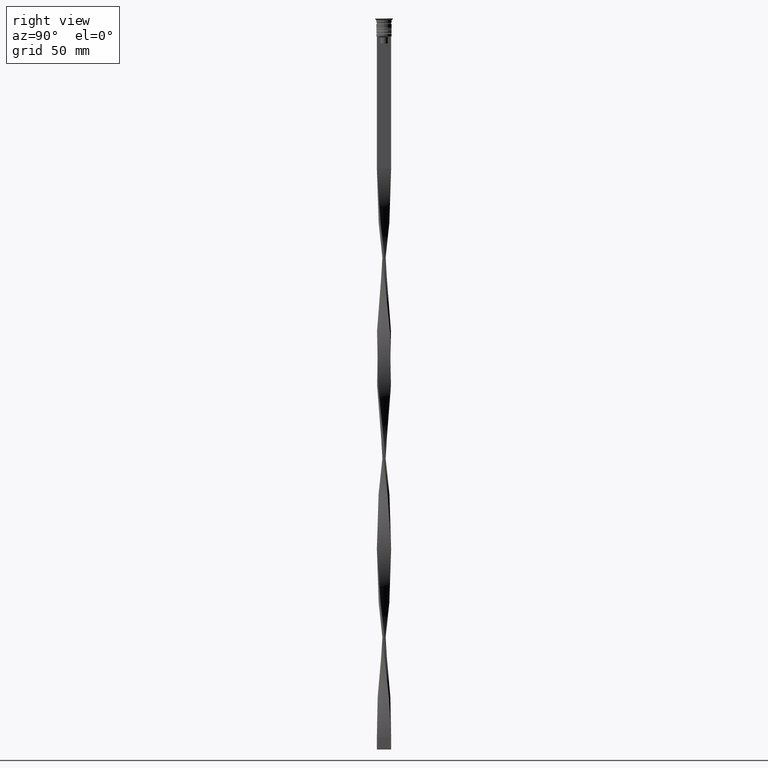
[diagram: clean part render]
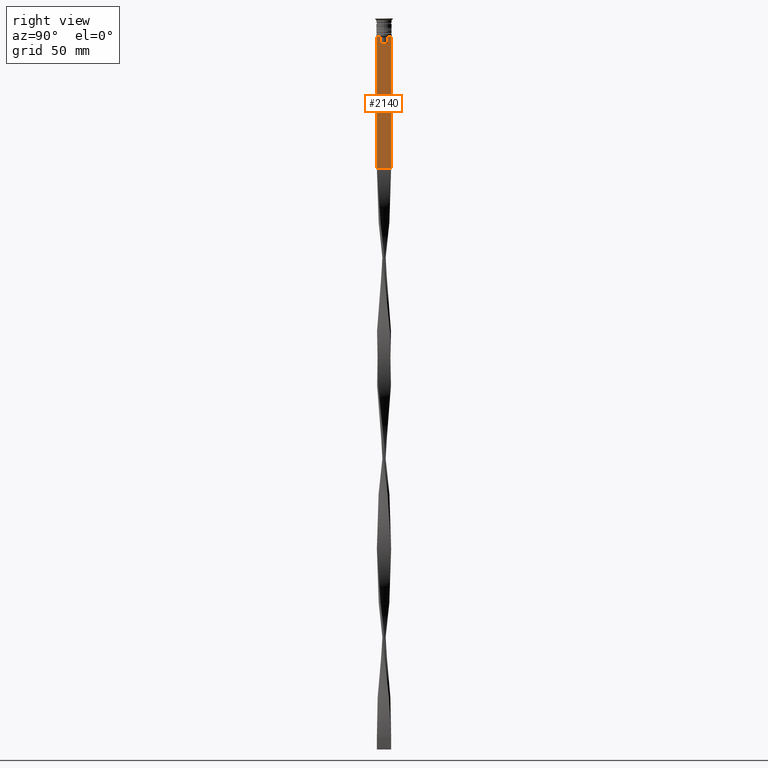
[diagram: same view with one face highlighted and labeled with its STEP entity id]
A machine part, right view. The second image highlights one B-rep face of the part: STEP entity #2140.
In plain terms, the highlighted planar face has unit normal (-1, 0, 0).
Its self-contained STEP definition (entity closure, byte-faithful):
#1 = EDGE_CURVE ( 'NONE', #3443, #3094, #826, .T. ) ;
#82 = DIRECTION ( 'NONE',  ( 0.000000000000000000, 1.000000000000000000, 0.000000000000000000 ) ) ;
#108 = CARTESIAN_POINT ( 'NONE',  ( 0.4999999999999998890, 3.000000000000000000, -1.417237469701779329 ) ) ;
#145 = EDGE_CURVE ( 'NONE', #1032, #1916, #1676, .T. ) ;
#248 = AXIS2_PLACEMENT_3D ( 'NONE', #797, #3171, #3395 ) ;
#262 = CARTESIAN_POINT ( 'NONE',  ( 0.4999999999999998890, 1.572418519351642452, -8.000000000000000000 ) ) ;
#354 = LINE ( 'NONE', #3752, #938 ) ;
#411 = VERTEX_POINT ( 'NONE', #3437 ) ;
#424 = LINE ( 'NONE', #2179, #2217 ) ;
#427 = LINE ( 'NONE', #1583, #1436 ) ;
#477 = VERTEX_POINT ( 'NONE', #581 ) ;
#516 = ORIENTED_EDGE ( 'NONE', *, *, #2050, .T. ) ;
#581 = CARTESIAN_POINT ( 'NONE',  ( 0.4999999999999998890, -3.000000000000000000, -7.500000000000000000 ) ) ;
#673 = EDGE_CURVE ( 'NONE', #3094, #806, #354, .T. ) ;
#714 = CARTESIAN_POINT ( 'NONE',  ( 0.4999999999999998890, -2.091052366632653481, -7.500000000000000000 ) ) ;
#732 = FACE_OUTER_BOUND ( 'NONE', #3494, .T. ) ;
#754 = EDGE_CURVE ( 'NONE', #2912, #3477, #1882, .T. ) ;
#766 = DIRECTION ( 'NONE',  ( 0.000000000000000000, 0.000000000000000000, -1.000000000000000000 ) ) ;
#797 = CARTESIAN_POINT ( 'NONE',  ( 0.4999999999999998890, -3.000000000000000000, -1.417237469701779329 ) ) ;
#804 = ORIENTED_EDGE ( 'NONE', *, *, #673, .T. ) ;
#806 = VERTEX_POINT ( 'NONE', #2063 ) ;
#826 = LINE ( 'NONE', #1938, #2101 ) ;
#884 = ORIENTED_EDGE ( 'NONE', *, *, #1935, .T. ) ;
#938 = VECTOR ( 'NONE', #2187, 1000.000000000000000 ) ;
#1032 = VERTEX_POINT ( 'NONE', #1797 ) ;
#1050 = VECTOR ( 'NONE', #3545, 1000.000000000000000 ) ;
#1080 = EDGE_CURVE ( 'NONE', #477, #411, #2465, .T. ) ;
#1229 = DIRECTION ( 'NONE',  ( 0.000000000000000000, -1.000000000000000000, 0.000000000000000000 ) ) ;
#1283 = EDGE_CURVE ( 'NONE', #806, #1032, #2931, .T. ) ;
#1306 = CARTESIAN_POINT ( 'NONE',  ( 0.4999999999999998890, 2.091052366632653481, -7.500000000000000000 ) ) ;
#1436 = VECTOR ( 'NONE', #2460, 1000.000000000000000 ) ;
#1491 = VECTOR ( 'NONE', #1520, 1000.000000000000000 ) ;
#1520 = DIRECTION ( 'NONE',  ( 0.000000000000000000, 0.000000000000000000, -1.000000000000000000 ) ) ;
#1583 = CARTESIAN_POINT ( 'NONE',  ( 0.4999999999999998890, -3.000000000000000000, -7.500000000000000000 ) ) ;
#1597 = VECTOR ( 'NONE', #82, 1000.000000000000000 ) ;
#1676 = B_SPLINE_CURVE_WITH_KNOTS ( 'NONE', 3,
 ( #3605, #2998, #3014, #2125 ),
 .UNSPECIFIED., .F., .F.,
 ( 4, 4 ),
 ( 0.008356915209744729747, 0.009073319521387651632 ),
 .UNSPECIFIED. ) ;
#1789 = CARTESIAN_POINT ( 'NONE',  ( 0.4999999999999998890, 1.572418519351642452, -10.49999999999999822 ) ) ;
#1797 = CARTESIAN_POINT ( 'NONE',  ( 0.4999999999999998890, -1.572418519351642452, -8.000000000000000000 ) ) ;
#1882 = LINE ( 'NONE', #108, #3086 ) ;
#1916 = VERTEX_POINT ( 'NONE', #714 ) ;
#1935 = EDGE_CURVE ( 'NONE', #2912, #3768, #424, .T. ) ;
#1938 = CARTESIAN_POINT ( 'NONE',  ( 0.4999999999999998890, 1.572418519351642452, 0.000000000000000000 ) ) ;
#1962 = ORIENTED_EDGE ( 'NONE', *, *, #145, .T. ) ;
#1996 = ORIENTED_EDGE ( 'NONE', *, *, #2936, .T. ) ;
#2006 = ORIENTED_EDGE ( 'NONE', *, *, #1080, .T. ) ;
#2007 = ORIENTED_EDGE ( 'NONE', *, *, #3252, .T. ) ;
#2050 = EDGE_CURVE ( 'NONE', #411, #3477, #2746, .T. ) ;
#2063 = CARTESIAN_POINT ( 'NONE',  ( 0.4999999999999998890, -1.572418519351642452, -10.49999999999999822 ) ) ;
#2101 = VECTOR ( 'NONE', #3174, 1000.000000000000000 ) ;
#2125 = CARTESIAN_POINT ( 'NONE',  ( 0.4999999999999998890, -2.091052366632653481, -7.500000000000000000 ) ) ;
#2140 = ADVANCED_FACE ( 'NONE', ( #732 ), #3441, .F. ) ;
#2179 = CARTESIAN_POINT ( 'NONE',  ( 0.4999999999999998890, -3.000000000000000000, -7.500000000000000000 ) ) ;
#2187 = DIRECTION ( 'NONE',  ( 0.000000000000000000, -1.000000000000000000, 0.000000000000000000 ) ) ;
#2217 = VECTOR ( 'NONE', #1229, 1000.000000000000000 ) ;
#2282 = ORIENTED_EDGE ( 'NONE', *, *, #1, .T. ) ;
#2355 = CARTESIAN_POINT ( 'NONE',  ( 0.4999999999999998890, -1.572418519351642452, 0.000000000000000000 ) ) ;
#2448 = B_SPLINE_CURVE_WITH_KNOTS ( 'NONE', 3,
 ( #3196, #2916, #3216, #262 ),
 .UNSPECIFIED., .F., .F.,
 ( 4, 4 ),
 ( 0.003696428037903523069, 0.004416830248125226156 ),
 .UNSPECIFIED. ) ;
#2460 = DIRECTION ( 'NONE',  ( 0.000000000000000000, -1.000000000000000000, 0.000000000000000000 ) ) ;
#2465 = LINE ( 'NONE', #3650, #1491 ) ;
#2746 = LINE ( 'NONE', #3052, #1597 ) ;
#2912 = VERTEX_POINT ( 'NONE', #3479 ) ;
#2916 = CARTESIAN_POINT ( 'NONE',  ( 0.4999999999999998890, 1.918907889994530436, -7.667424704779945976 ) ) ;
#2931 = LINE ( 'NONE', #2355, #1050 ) ;
#2936 = EDGE_CURVE ( 'NONE', #3768, #3443, #2448, .T. ) ;
#2998 = CARTESIAN_POINT ( 'NONE',  ( 0.4999999999999998890, -1.746240429054158660, -7.834351036433149673 ) ) ;
#3014 = CARTESIAN_POINT ( 'NONE',  ( 0.4999999999999998890, -1.918909712772151721, -7.667422931978337353 ) ) ;
#3052 = CARTESIAN_POINT ( 'NONE',  ( 0.4999999999999998890, -3.000000000000000000, -63.00000000000000000 ) ) ;
#3054 = ORIENTED_EDGE ( 'NONE', *, *, #754, .F. ) ;
#3086 = VECTOR ( 'NONE', #766, 1000.000000000000000 ) ;
#3094 = VERTEX_POINT ( 'NONE', #1789 ) ;
#3171 = DIRECTION ( 'NONE',  ( -1.000000000000000000, 0.000000000000000000, 0.000000000000000000 ) ) ;
#3174 = DIRECTION ( 'NONE',  ( 0.000000000000000000, 0.000000000000000000, -1.000000000000000000 ) ) ;
#3196 = CARTESIAN_POINT ( 'NONE',  ( 0.4999999999999998890, 2.091052366632653481, -7.500000000000000000 ) ) ;
#3216 = CARTESIAN_POINT ( 'NONE',  ( 0.4999999999999998890, 1.746261636039131870, -7.834330826581080487 ) ) ;
#3247 = CARTESIAN_POINT ( 'NONE',  ( 0.4999999999999998890, 1.572418519351642452, -8.000000000000000000 ) ) ;
#3252 = EDGE_CURVE ( 'NONE', #1916, #477, #427, .T. ) ;
#3395 = DIRECTION ( 'NONE',  ( 0.000000000000000000, 0.000000000000000000, 1.000000000000000000 ) ) ;
#3437 = CARTESIAN_POINT ( 'NONE',  ( 0.4999999999999998890, -3.000000000000000000, -63.00000000000000000 ) ) ;
#3441 = PLANE ( 'NONE',  #248 ) ;
#3443 = VERTEX_POINT ( 'NONE', #3247 ) ;
#3477 = VERTEX_POINT ( 'NONE', #3567 ) ;
#3479 = CARTESIAN_POINT ( 'NONE',  ( 0.4999999999999998890, 3.000000000000000000, -7.500000000000000000 ) ) ;
#3494 = EDGE_LOOP ( 'NONE', ( #884, #1996, #2282, #804, #3529, #1962, #2007, #2006, #516, #3054 ) ) ;
#3529 = ORIENTED_EDGE ( 'NONE', *, *, #1283, .T. ) ;
#3545 = DIRECTION ( 'NONE',  ( -0.000000000000000000, -0.000000000000000000, 1.000000000000000000 ) ) ;
#3567 = CARTESIAN_POINT ( 'NONE',  ( 0.4999999999999998890, 3.000000000000000000, -63.00000000000000000 ) ) ;
#3605 = CARTESIAN_POINT ( 'NONE',  ( 0.4999999999999998890, -1.572418519351642452, -8.000000000000000000 ) ) ;
#3650 = CARTESIAN_POINT ( 'NONE',  ( 0.4999999999999998890, -3.000000000000000000, -1.417237469701779329 ) ) ;
#3752 = CARTESIAN_POINT ( 'NONE',  ( 0.4999999999999998890, 1.650000000000003464, -10.49999999999999822 ) ) ;
#3768 = VERTEX_POINT ( 'NONE', #1306 ) ;